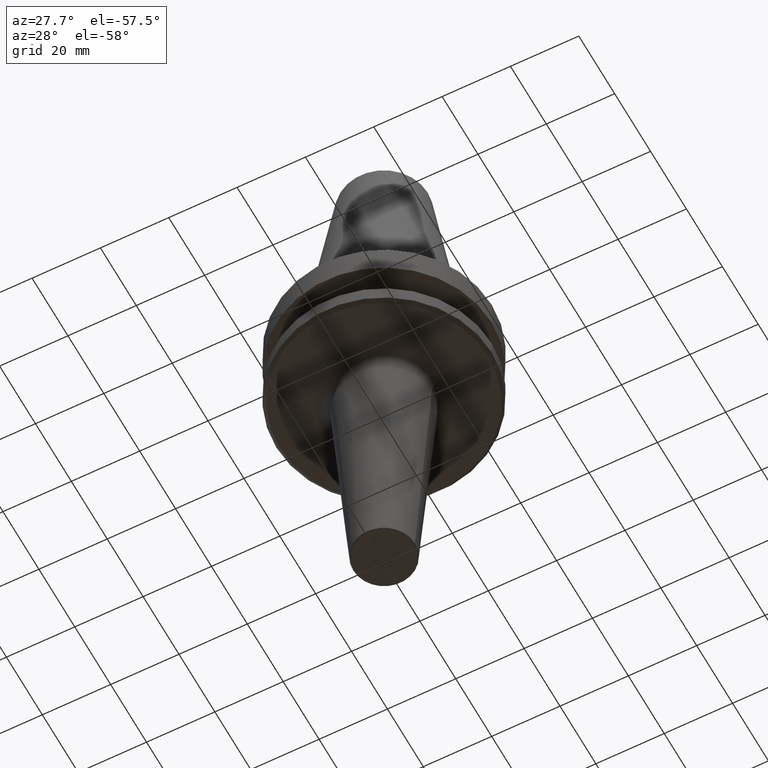
[diagram: clean part render]
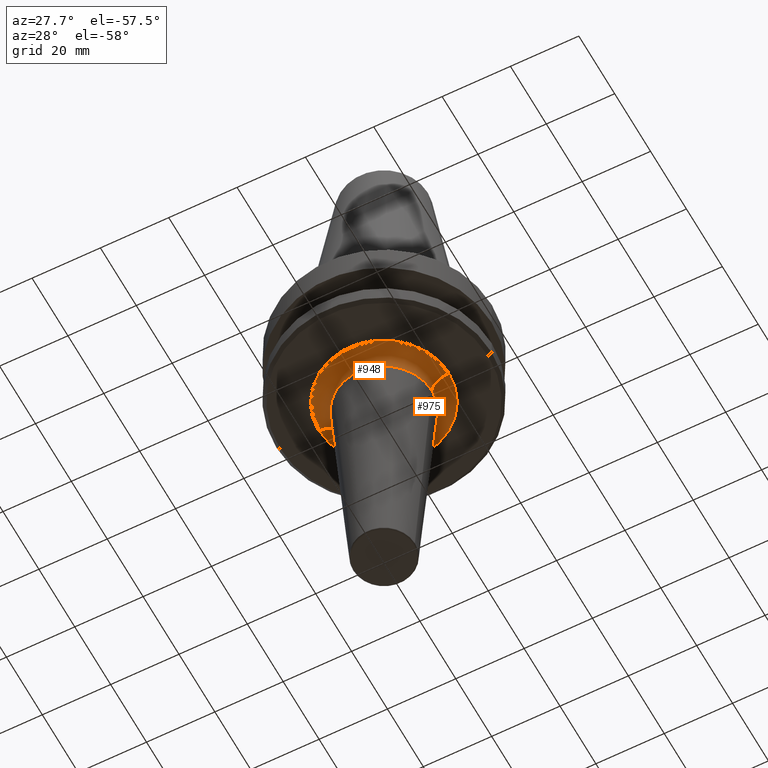
[diagram: same view with one multi-face feature highlighted, each face labeled with its STEP entity id]
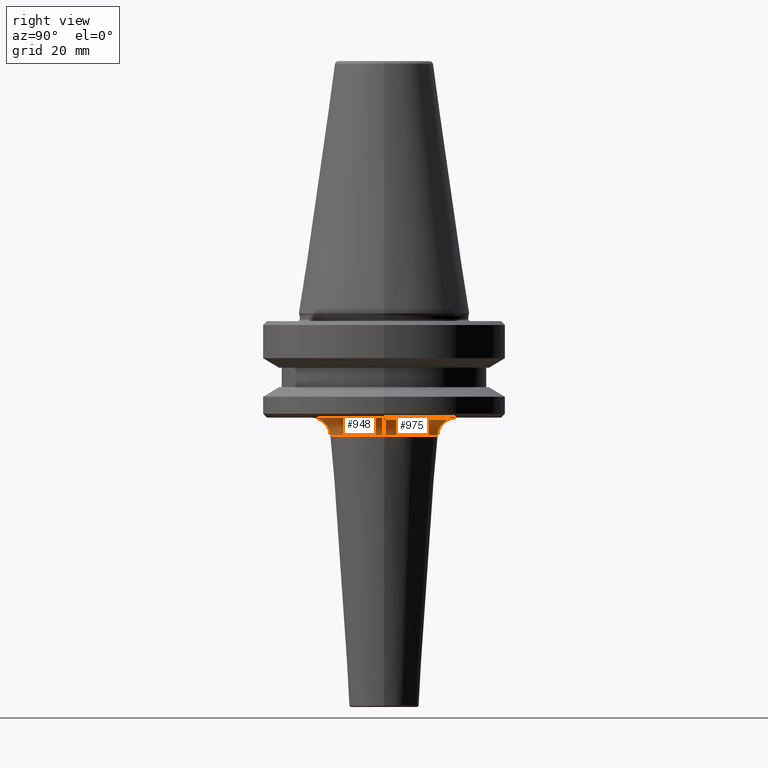
[diagram: same view with one multi-face feature highlighted, each face labeled with its STEP entity id]
A machine part, auxiliary view. The highlighted faces form ONE feature: a constant-radius fillet chain: 2 tangent blend faces with common blend radius 5 mm. The faces share edges in the B-rep.
A second angle (right view) of the same feature is appended — it is thin or edge-on in the first view.
Their STEP definitions:
[1] entity #948 (Torus):
#14 = VERTEX_POINT ( 'NONE', #81 ) ;
#17 = EDGE_LOOP ( 'NONE', ( #345, #757, #513, #543 ) ) ;
#81 = CARTESIAN_POINT ( 'NONE',  ( -14.00000000000000500, 2.019896960283764800E-015, -97.04555044078098500 ) ) ;
#95 = CIRCLE ( 'NONE', #1048, 5.000000000000008000 ) ;
#189 = AXIS2_PLACEMENT_3D ( 'NONE', #720, #445, #1002 ) ;
#214 = DIRECTION ( 'NONE',  ( -0.0000000000000000000, -0.0000000000000000000, 1.000000000000000000 ) ) ;
#245 = CIRCLE ( 'NONE', #189, 14.00000000000000500 ) ;
#251 = EDGE_CURVE ( 'NONE', #527, #892, #366, .T. ) ;
#255 = CARTESIAN_POINT ( 'NONE',  ( 18.98742072718592100, 0.0000000000000000000, -97.40000000000804900 ) ) ;
#267 = CARTESIAN_POINT ( 'NONE',  ( -18.98742072718592100, 2.325288401761234800E-015, -92.40000000000803500 ) ) ;
#291 = FACE_OUTER_BOUND ( 'NONE', #17, .T. ) ;
#310 = EDGE_CURVE ( 'NONE', #900, #14, #95, .T. ) ;
#345 = ORIENTED_EDGE ( 'NONE', *, *, #392, .F. ) ;
#366 = CIRCLE ( 'NONE', #957, 5.000000000000004400 ) ;
#389 = AXIS2_PLACEMENT_3D ( 'NONE', #858, #610, #721 ) ;
#392 = EDGE_CURVE ( 'NONE', #900, #527, #428, .T. ) ;
#428 = CIRCLE ( 'NONE', #389, 18.98742072718592100 ) ;
#445 = DIRECTION ( 'NONE',  ( -0.0000000000000000000, -0.0000000000000000000, 1.000000000000000000 ) ) ;
#486 = CARTESIAN_POINT ( 'NONE',  ( 14.00000000000000500, 0.0000000000000000000, -97.04555044078098500 ) ) ;
#513 = ORIENTED_EDGE ( 'NONE', *, *, #778, .T. ) ;
#527 = VERTEX_POINT ( 'NONE', #1012 ) ;
#543 = ORIENTED_EDGE ( 'NONE', *, *, #251, .F. ) ;
#598 = CARTESIAN_POINT ( 'NONE',  ( -18.98742072718592100, 2.325288401761234800E-015, -97.40000000000804900 ) ) ;
#610 = DIRECTION ( 'NONE',  ( -0.0000000000000000000, -0.0000000000000000000, 1.000000000000000000 ) ) ;
#611 = DIRECTION ( 'NONE',  ( -1.000000000000000000, 1.224646799147353000E-016, 0.0000000000000000000 ) ) ;
#686 = DIRECTION ( 'NONE',  ( 1.224646799147353200E-016, 1.000000000000000000, 0.0000000000000000000 ) ) ;
#712 = CARTESIAN_POINT ( 'NONE',  ( 0.0000000000000000000, 0.0000000000000000000, -97.40000000000804900 ) ) ;
#720 = CARTESIAN_POINT ( 'NONE',  ( 0.0000000000000000000, 0.0000000000000000000, -97.04555044078098500 ) ) ;
#721 = DIRECTION ( 'NONE',  ( 1.000000000000000000, 0.0000000000000000000, 0.0000000000000000000 ) ) ;
#757 = ORIENTED_EDGE ( 'NONE', *, *, #310, .T. ) ;
#768 = DIRECTION ( 'NONE',  ( 0.0000000000000000000, 0.0000000000000000000, -1.000000000000000000 ) ) ;
#778 = EDGE_CURVE ( 'NONE', #14, #892, #245, .T. ) ;
#850 = DIRECTION ( 'NONE',  ( 0.0000000000000000000, -1.000000000000000000, 0.0000000000000000000 ) ) ;
#858 = CARTESIAN_POINT ( 'NONE',  ( 0.0000000000000000000, 0.0000000000000000000, -92.40000000000803500 ) ) ;
#892 = VERTEX_POINT ( 'NONE', #486 ) ;
#900 = VERTEX_POINT ( 'NONE', #267 ) ;
#929 = TOROIDAL_SURFACE ( 'NONE', #998, 18.98742072718592100, 5.000000000000008000 ) ;
#941 = DIRECTION ( 'NONE',  ( 1.000000000000000000, 0.0000000000000000000, 0.0000000000000000000 ) ) ;
#948 = ADVANCED_FACE ( 'NONE', ( #291 ), #929, .F. ) ;
#957 = AXIS2_PLACEMENT_3D ( 'NONE', #255, #850, #768 ) ;
#998 = AXIS2_PLACEMENT_3D ( 'NONE', #712, #214, #941 ) ;
#1002 = DIRECTION ( 'NONE',  ( 1.000000000000000000, 0.0000000000000000000, 0.0000000000000000000 ) ) ;
#1012 = CARTESIAN_POINT ( 'NONE',  ( 18.98742072718592100, 0.0000000000000000000, -92.40000000000803500 ) ) ;
#1048 = AXIS2_PLACEMENT_3D ( 'NONE', #598, #686, #611 ) ;
[2] entity #975 (Torus):
#2 = EDGE_LOOP ( 'NONE', ( #570, #125, #295, #734 ) ) ;
#10 = FACE_OUTER_BOUND ( 'NONE', #2, .T. ) ;
#14 = VERTEX_POINT ( 'NONE', #81 ) ;
#26 = CARTESIAN_POINT ( 'NONE',  ( 0.0000000000000000000, 0.0000000000000000000, -97.40000000000804900 ) ) ;
#53 = DIRECTION ( 'NONE',  ( -0.0000000000000000000, -0.0000000000000000000, 1.000000000000000000 ) ) ;
#81 = CARTESIAN_POINT ( 'NONE',  ( -14.00000000000000500, 2.019896960283764800E-015, -97.04555044078098500 ) ) ;
#95 = CIRCLE ( 'NONE', #1048, 5.000000000000008000 ) ;
#125 = ORIENTED_EDGE ( 'NONE', *, *, #532, .F. ) ;
#228 = AXIS2_PLACEMENT_3D ( 'NONE', #26, #53, #612 ) ;
#251 = EDGE_CURVE ( 'NONE', #527, #892, #366, .T. ) ;
#255 = CARTESIAN_POINT ( 'NONE',  ( 18.98742072718592100, 0.0000000000000000000, -97.40000000000804900 ) ) ;
#266 = TOROIDAL_SURFACE ( 'NONE', #228, 18.98742072718592100, 5.000000000000008000 ) ;
#267 = CARTESIAN_POINT ( 'NONE',  ( -18.98742072718592100, 2.325288401761234800E-015, -92.40000000000803500 ) ) ;
#289 = CARTESIAN_POINT ( 'NONE',  ( 0.0000000000000000000, 0.0000000000000000000, -97.04555044078098500 ) ) ;
#295 = ORIENTED_EDGE ( 'NONE', *, *, #251, .T. ) ;
#310 = EDGE_CURVE ( 'NONE', #900, #14, #95, .T. ) ;
#336 = DIRECTION ( 'NONE',  ( -0.0000000000000000000, -0.0000000000000000000, 1.000000000000000000 ) ) ;
#340 = DIRECTION ( 'NONE',  ( 1.000000000000000000, 0.0000000000000000000, 0.0000000000000000000 ) ) ;
#366 = CIRCLE ( 'NONE', #957, 5.000000000000004400 ) ;
#486 = CARTESIAN_POINT ( 'NONE',  ( 14.00000000000000500, 0.0000000000000000000, -97.04555044078098500 ) ) ;
#503 = DIRECTION ( 'NONE',  ( -0.0000000000000000000, -0.0000000000000000000, 1.000000000000000000 ) ) ;
#520 = DIRECTION ( 'NONE',  ( 1.000000000000000000, 0.0000000000000000000, 0.0000000000000000000 ) ) ;
#527 = VERTEX_POINT ( 'NONE', #1012 ) ;
#532 = EDGE_CURVE ( 'NONE', #527, #900, #798, .T. ) ;
#541 = AXIS2_PLACEMENT_3D ( 'NONE', #636, #503, #520 ) ;
#570 = ORIENTED_EDGE ( 'NONE', *, *, #310, .F. ) ;
#575 = EDGE_CURVE ( 'NONE', #892, #14, #1006, .T. ) ;
#598 = CARTESIAN_POINT ( 'NONE',  ( -18.98742072718592100, 2.325288401761234800E-015, -97.40000000000804900 ) ) ;
#611 = DIRECTION ( 'NONE',  ( -1.000000000000000000, 1.224646799147353000E-016, 0.0000000000000000000 ) ) ;
#612 = DIRECTION ( 'NONE',  ( 1.000000000000000000, 0.0000000000000000000, 0.0000000000000000000 ) ) ;
#636 = CARTESIAN_POINT ( 'NONE',  ( 0.0000000000000000000, 0.0000000000000000000, -92.40000000000803500 ) ) ;
#645 = AXIS2_PLACEMENT_3D ( 'NONE', #289, #336, #340 ) ;
#686 = DIRECTION ( 'NONE',  ( 1.224646799147353200E-016, 1.000000000000000000, 0.0000000000000000000 ) ) ;
#734 = ORIENTED_EDGE ( 'NONE', *, *, #575, .T. ) ;
#768 = DIRECTION ( 'NONE',  ( 0.0000000000000000000, 0.0000000000000000000, -1.000000000000000000 ) ) ;
#798 = CIRCLE ( 'NONE', #541, 18.98742072718592100 ) ;
#850 = DIRECTION ( 'NONE',  ( 0.0000000000000000000, -1.000000000000000000, 0.0000000000000000000 ) ) ;
#892 = VERTEX_POINT ( 'NONE', #486 ) ;
#900 = VERTEX_POINT ( 'NONE', #267 ) ;
#957 = AXIS2_PLACEMENT_3D ( 'NONE', #255, #850, #768 ) ;
#975 = ADVANCED_FACE ( 'NONE', ( #10 ), #266, .F. ) ;
#1006 = CIRCLE ( 'NONE', #645, 14.00000000000000500 ) ;
#1012 = CARTESIAN_POINT ( 'NONE',  ( 18.98742072718592100, 0.0000000000000000000, -92.40000000000803500 ) ) ;
#1048 = AXIS2_PLACEMENT_3D ( 'NONE', #598, #686, #611 ) ;